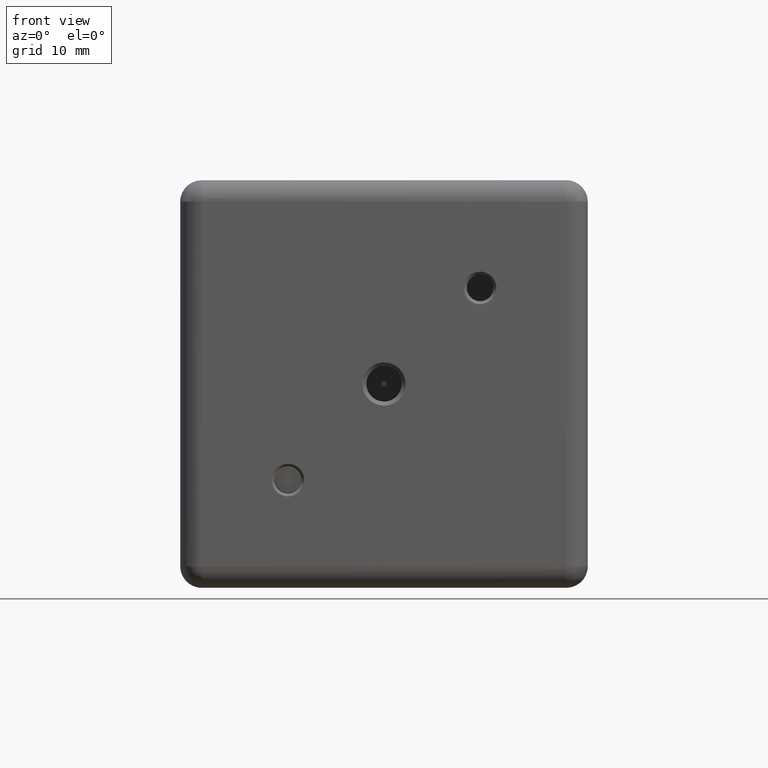
[diagram: clean part render]
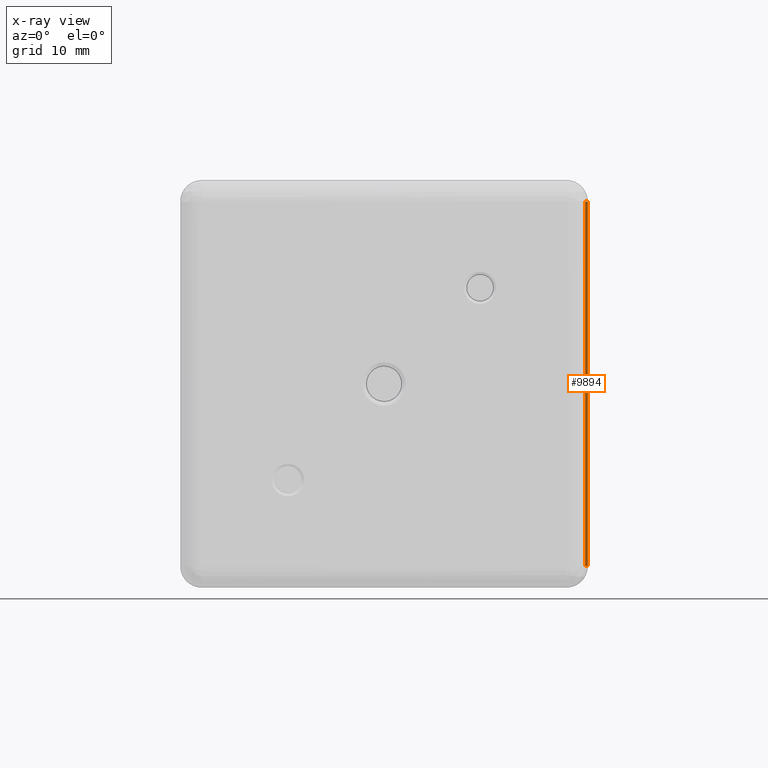
[diagram: x-ray — body ghosted, one internal face saturated and labeled with its STEP entity id]
A machine part, front view, then the same camera in x-ray: the body is ghosted and one INTERNAL B-rep face — a face not visible from any outside direction — is saturated and labeled: STEP entity #9894.
In plain terms, the highlighted face is a freeform B-spline surface patch.
Its self-contained STEP definition (entity closure, byte-faithful):
#810 = B_SPLINE_CURVE_WITH_KNOTS ( 'NONE', 1,
 ( #12182, #7549 ),
 .UNSPECIFIED., .F., .F.,
 ( 2, 2 ),
 ( -1.000000000000000000, 0.000000000000000000 ),
 .UNSPECIFIED. ) ;
#834 = CARTESIAN_POINT ( 'NONE',  ( 18.80000000000000071, 2.000000000000000000, -17.05000000000000071 ) ) ;
#1439 = CARTESIAN_POINT ( 'NONE',  ( 18.80000000000000071, 2.000000000000000000, 17.05000000000000071 ) ) ;
#1664 = B_SPLINE_SURFACE_WITH_KNOTS ( 'NONE', 1, 1, ( 
 ( #4240, #8144 ),
 ( #7058, #8081 ) ),
 .UNSPECIFIED., .F., .F., .F.,
 ( 2, 2 ),
 ( 2, 2 ),
 ( 0.000000000000000000, 1.000000000000000000 ),
 ( 0.000000000000000000, 1.000000000000000000 ),
 .UNSPECIFIED. ) ;
#1670 = CARTESIAN_POINT ( 'NONE',  ( 19.05000000000000071, 1.750000000000000000, -17.05000000000000071 ) ) ;
#2328 = EDGE_CURVE ( 'NONE', #10337, #4382, #3928, .T. ) ;
#2693 = CARTESIAN_POINT ( 'NONE',  ( 19.05000000000000071, 1.750000000000000000, -17.05000000000000071 ) ) ;
#3482 = B_SPLINE_CURVE_WITH_KNOTS ( 'NONE', 1,
 ( #2693, #10464 ),
 .UNSPECIFIED., .F., .F.,
 ( 2, 2 ),
 ( -1.000000000000000000, 0.000000000000000000 ),
 .UNSPECIFIED. ) ;
#3754 = B_SPLINE_CURVE_WITH_KNOTS ( 'NONE', 1,
 ( #10166, #1439 ),
 .UNSPECIFIED., .F., .F.,
 ( 2, 2 ),
 ( 0.000000000000000000, 1.000000000000000000 ),
 .UNSPECIFIED. ) ;
#3928 = B_SPLINE_CURVE_WITH_KNOTS ( 'NONE', 1,
 ( #1670, #834 ),
 .UNSPECIFIED., .F., .F.,
 ( 2, 2 ),
 ( 0.000000000000000000, 1.000000000000000000 ),
 .UNSPECIFIED. ) ;
#4240 = CARTESIAN_POINT ( 'NONE',  ( 19.05000000000000071, 1.750000000000000000, 17.05000000000000071 ) ) ;
#4257 = ORIENTED_EDGE ( 'NONE', *, *, #7978, .F. ) ;
#4382 = VERTEX_POINT ( 'NONE', #9969 ) ;
#4941 = ORIENTED_EDGE ( 'NONE', *, *, #2328, .T. ) ;
#6465 = EDGE_CURVE ( 'NONE', #8470, #12301, #3754, .T. ) ;
#6779 = CARTESIAN_POINT ( 'NONE',  ( 19.05000000000000071, 1.750000000000000000, -17.05000000000000071 ) ) ;
#7058 = CARTESIAN_POINT ( 'NONE',  ( 19.05000000000000071, 1.750000000000000000, -17.05000000000000071 ) ) ;
#7549 = CARTESIAN_POINT ( 'NONE',  ( 18.80000000000000071, 2.000000000000000000, 17.05000000000000071 ) ) ;
#7978 = EDGE_CURVE ( 'NONE', #10337, #8470, #3482, .T. ) ;
#8017 = ORIENTED_EDGE ( 'NONE', *, *, #6465, .F. ) ;
#8081 = CARTESIAN_POINT ( 'NONE',  ( 18.80000000000000071, 2.000000000000000000, -17.05000000000000071 ) ) ;
#8144 = CARTESIAN_POINT ( 'NONE',  ( 18.80000000000000071, 2.000000000000000000, 17.05000000000000071 ) ) ;
#8470 = VERTEX_POINT ( 'NONE', #9753 ) ;
#9088 = ORIENTED_EDGE ( 'NONE', *, *, #9962, .T. ) ;
#9753 = CARTESIAN_POINT ( 'NONE',  ( 19.05000000000000071, 1.750000000000000000, 17.05000000000000071 ) ) ;
#9894 = ADVANCED_FACE ( 'NONE', ( #10157 ), #1664, .T. ) ;
#9962 = EDGE_CURVE ( 'NONE', #4382, #12301, #810, .T. ) ;
#9969 = CARTESIAN_POINT ( 'NONE',  ( 18.80000000000000071, 2.000000000000000000, -17.05000000000000071 ) ) ;
#10157 = FACE_OUTER_BOUND ( 'NONE', #10473, .T. ) ;
#10166 = CARTESIAN_POINT ( 'NONE',  ( 19.05000000000000071, 1.750000000000000000, 17.05000000000000071 ) ) ;
#10337 = VERTEX_POINT ( 'NONE', #6779 ) ;
#10464 = CARTESIAN_POINT ( 'NONE',  ( 19.05000000000000071, 1.750000000000000000, 17.05000000000000071 ) ) ;
#10473 = EDGE_LOOP ( 'NONE', ( #9088, #8017, #4257, #4941 ) ) ;
#11438 = CARTESIAN_POINT ( 'NONE',  ( 18.80000000000000071, 2.000000000000000000, 17.05000000000000071 ) ) ;
#12182 = CARTESIAN_POINT ( 'NONE',  ( 18.80000000000000071, 2.000000000000000000, -17.05000000000000071 ) ) ;
#12301 = VERTEX_POINT ( 'NONE', #11438 ) ;